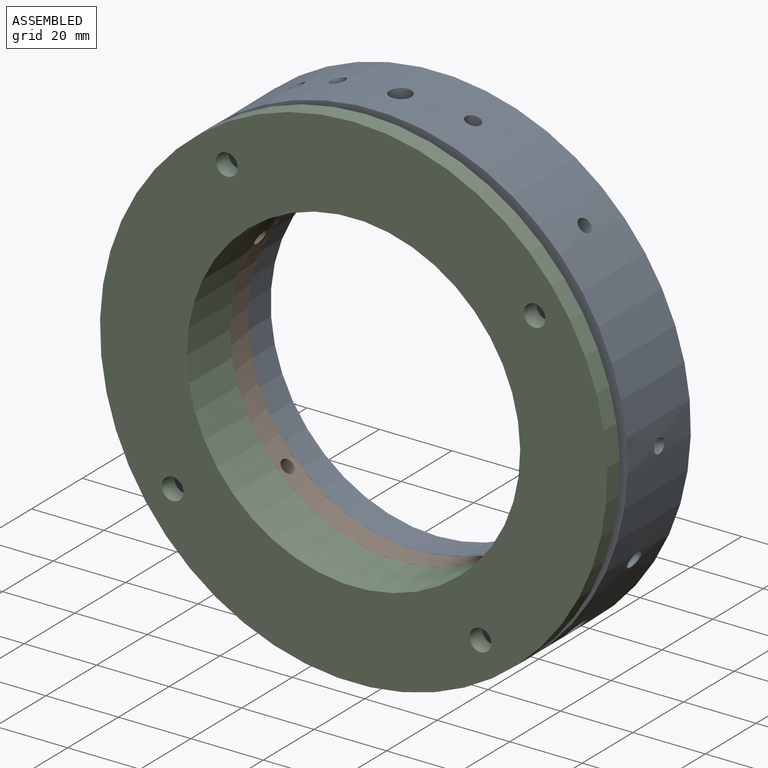
[diagram: assembled view]
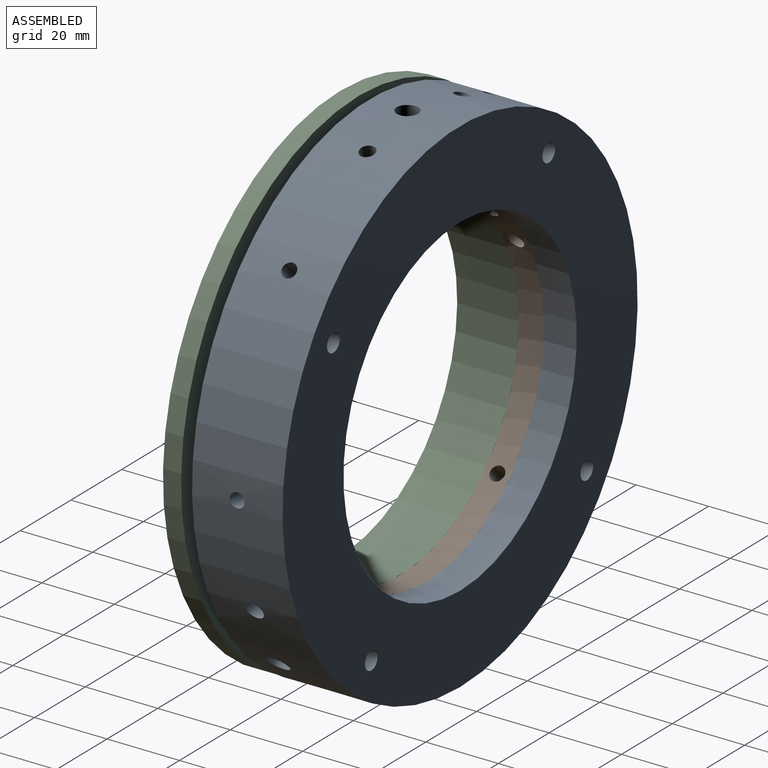
[diagram: assembled view, second angle]
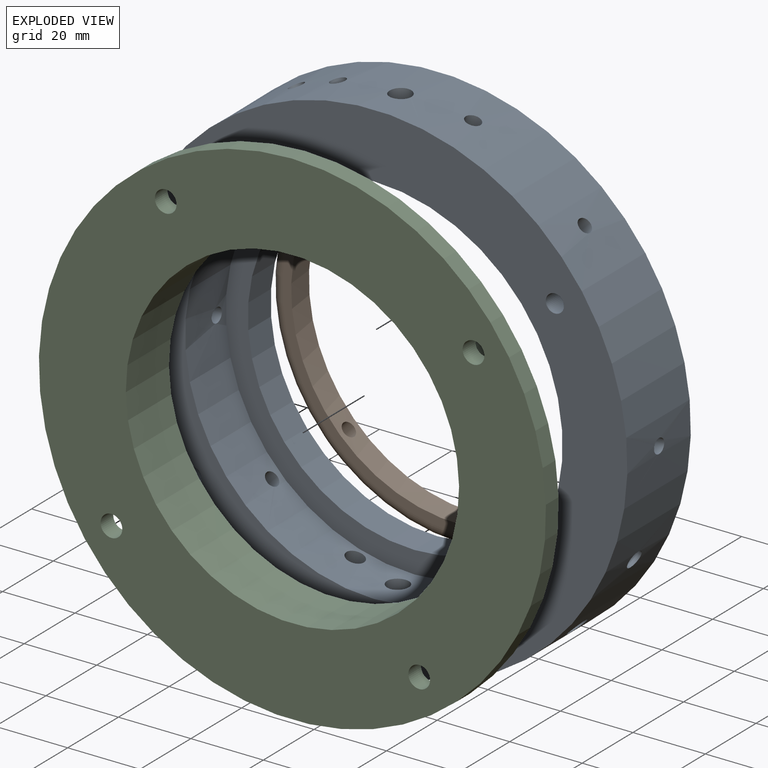
[diagram: exploded view]
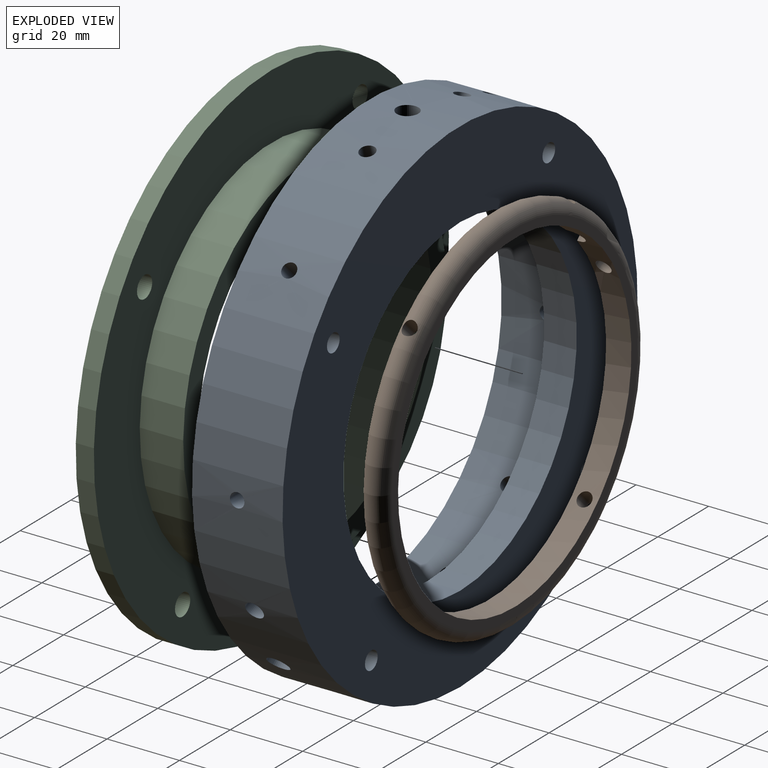
[diagram: exploded view, second angle]
ASSEMBLY  parts=3 mates=5
PART A: 26 faces, bbox 140x25x140 mm
  f0: cylinder r=3mm len=16.96mm, axis (0.71,0,-0.71), area 337.6mm2, adj f2,f3
  f1: cylinder r=3mm len=16.96mm, axis (-0.71,0,0.71), area 337.6mm2, adj f2,f3
  f2: cylinder r=70mm len=140mm, axis (0,1,0), area 10696.1mm2, adj f0,f1,f7,f8,f10,f11,f12,f13
  f3: cylinder r=52.1mm len=104.2mm, axis (0,1,0), area 4938.7mm2, adj f0,f1,f7,f8,f10,f11,f12,f13
  f4: cylinder r=2.5mm len=25mm, axis (0,-1,0), area 392.7mm2, adj f16,f17
  f5: cylinder r=2.5mm len=25mm, axis (0,-1,0), area 392.7mm2, adj f16,f17
  f6: cylinder r=2.5mm len=25mm, axis (0,-1,0), area 392.7mm2, adj f16,f17
  f7: cylinder r=2mm len=15.51mm, axis (-0.71,0,-0.71), area 225mm2, adj f2,f3
  f8: cylinder r=2mm len=15.51mm, axis (-0.71,0,-0.71), area 225mm2, adj f2,f3
  f9: cylinder r=46mm len=92mm, axis (0,1,0), area 2601.2mm2, adj f17,f18
  f10: cylinder r=2mm len=17.94mm, axis (-1,0,0), area 225mm2, adj f2,f3
  f11: cylinder r=2mm len=17.94mm, axis (-1,0,0), area 225mm2, adj f2,f3
  f12: cylinder r=2.1mm len=18.41mm, axis (0.27,0,0.96), area 236.3mm2, adj f2,f3
  f13: cylinder r=2.1mm len=18.41mm, axis (-0.27,0,0.96), area 236.3mm2, adj f2,f3
  f14: cylinder r=2.5mm len=18.64mm, axis (0.27,0,-0.96), area 281.3mm2, adj f2,f3
  f15: cylinder r=2.5mm len=18.64mm, axis (-0.27,0,-0.96), area 281.3mm2, adj f2,f3
  f16: plane 140x140mm, normal (0,-1,0), area 6787.7mm2, adj f2,f3,f4,f5,f6,f23
  f17: plane 140x140mm, normal (0,1,0), area 8667.7mm2, adj f2,f4,f5,f6,f9,f23
  f18: plane 104.2x104.2mm, normal (0,-1,0), area 1880mm2, adj f3,f9
  f19: cylinder r=2.1mm len=18mm, axis (-0.9,0,0.43), area 236.3mm2, adj f2,f3
  f20: cylinder r=2.1mm len=18mm, axis (-0.43,0,0.9), area 236.3mm2, adj f2,f3
  f21: cylinder r=2.5mm len=18.36mm, axis (0.9,0,-0.43), area 281.3mm2, adj f2,f3
  f22: cylinder r=2.5mm len=18.36mm, axis (0.43,0,-0.9), area 281.3mm2, adj f2,f3
  f23: cylinder r=2.5mm len=25mm, axis (0,-1,0), area 392.7mm2, adj f16,f17
  f24: cylinder r=3mm len=17.99mm, axis (0,0,1), area 337.6mm2, adj f2,f3
  f25: cylinder r=3mm len=17.99mm, axis (0,0,-1), area 337.6mm2, adj f2,f3
PART B: 11 faces, bbox 112.6x7x112.6 mm
  f0: cylinder r=46mm len=92mm, axis (0,1,0), area 1953.6mm2, adj f2,f3,f4,f5,f6,f7,f8,f9
  f1: torus R=48.5mm, axis (0,-1,0), area 3420.7mm2, adj f2,f3,f4,f5,f6,f7,f8,f9
  f2: plane 97x96.91mm, normal (0,-1,0), area 727.2mm2, adj f0,f1,f7,f8
  f3: cylinder r=3mm len=6.1mm, axis (0,0,-1), area 53.4mm2, adj f0,f1,f7,f8
  f4: plane 97x97mm, normal (0,1,0), area 742.2mm2, adj f0,f1
  f5: cylinder r=2mm len=6.01mm, axis (1,0,0), area 71.6mm2, adj f0,f1
  f6: cylinder r=2mm len=6.01mm, axis (1,0,0), area 71.6mm2, adj f0,f1
  f7: plane 4.32x0.51mm, normal (-1,0,0), area 1.9mm2, adj f0,f1,f2,f3
  f8: plane 4.32x0.51mm, normal (1,0,0), area 1.9mm2, adj f0,f1,f2,f3
  f9: cylinder r=2.1mm len=6.91mm, axis (-0.27,0,-0.96), area 74.7mm2, adj f0,f1
  f10: cylinder r=2.1mm len=6.91mm, axis (0.27,0,-0.96), area 74.7mm2, adj f0,f1
PART C: 10 faces, bbox 140x17x140 mm
  f0: cylinder r=3mm len=6mm, axis (0,1,0), area 94.2mm2, adj f6,f7
  f1: cylinder r=3mm len=6mm, axis (0,1,0), area 94.2mm2, adj f6,f7
  f2: cylinder r=3mm len=6mm, axis (0,1,0), area 94.2mm2, adj f6,f7
  f3: plane 103.8x103.8mm, normal (0,1,0), area 1814.6mm2, adj f4,f8
  f4: cylinder r=46mm len=92mm, axis (0,1,0), area 4913.5mm2, adj f3,f6
  f5: cylinder r=70mm len=140mm, axis (0,1,0), area 2199.1mm2, adj f6,f7
  f6: plane 140x140mm, normal (0,-1,0), area 8633.1mm2, adj f0,f1,f2,f4,f5,f9
  f7: plane 140x140mm, normal (0,1,0), area 6818.5mm2, adj f0,f1,f2,f5,f8,f9
  f8: cylinder r=51.9mm len=103.8mm, axis (0,-1,0), area 3913.2mm2, adj f3,f7
  f9: cylinder r=3mm len=6mm, axis (0,1,0), area 94.2mm2, adj f6,f7
PLACE A t=(-43.23,-19.31,8.47)mm fixed
PLACE B rot(axis=(0,-1,0),45deg) t=(-43.23,-19.31,8.47)mm
PLACE C rot(axis=(0,1,0),55deg) t=(-43.23,-34.81,8.47)mm
MATE cylindrical A.f9 <-> C.f4  axis (0,1,0) through (-43.23,-11.31,8.47)mm
MATE cylindrical A.f3 <-> B.f0  axis (0,1,0) through (-43.23,-23.81,8.47)mm
MATE cylindrical A.f23 <-> C.f0  axis (0,-1,0) through (-78.21,-19.31,58.44)mm
MATE cylindrical B.f5 <-> A.f7  axis (0.71,0,0.71) through (-80,-19.31,-28.3)mm
MATE planar C.f5 <-> B.f2  axis (0,1,0) through (-43.23,-22.81,8.47)mm
